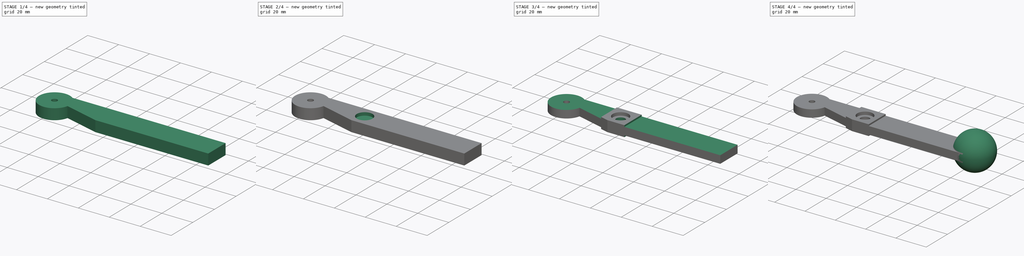
[diagram: build sequence overview — one tinted view per stage of 4, left to right]
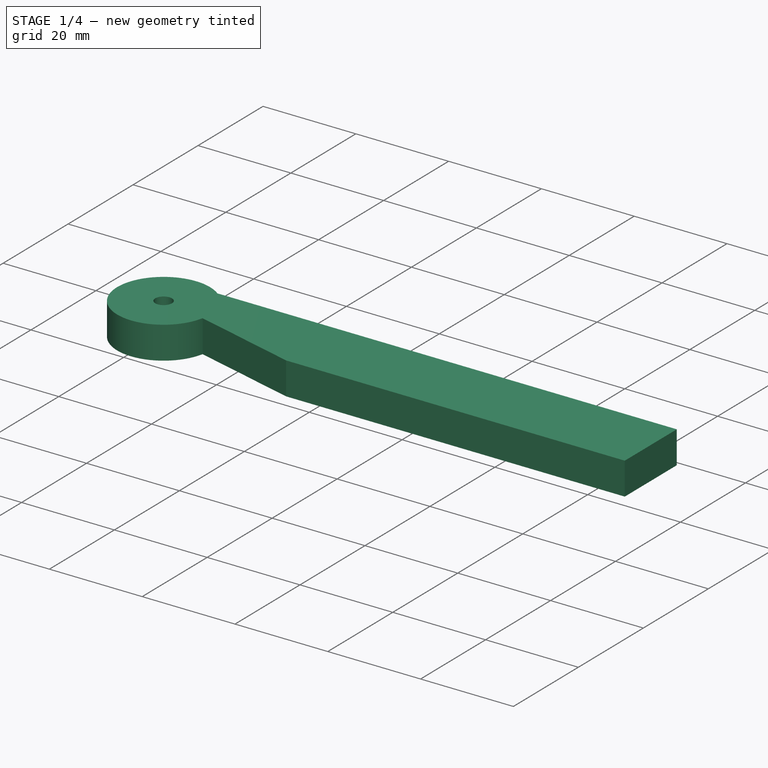
[diagram: stage 1 of 4 — iso view after this stage's code; geometry added in this stage tinted green]
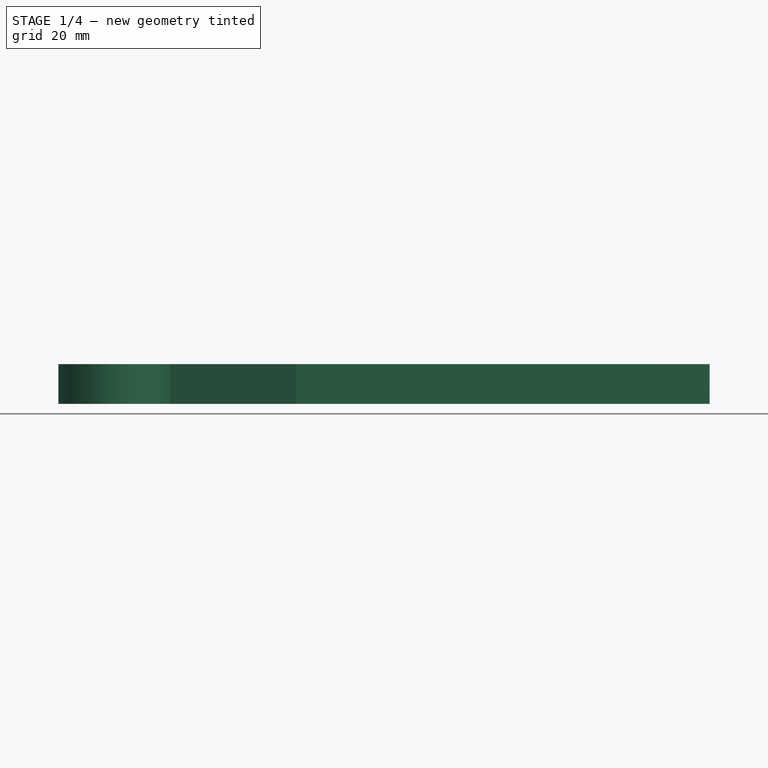
[diagram: stage 1 of 4 — front view after this stage's code; geometry added in this stage tinted green]
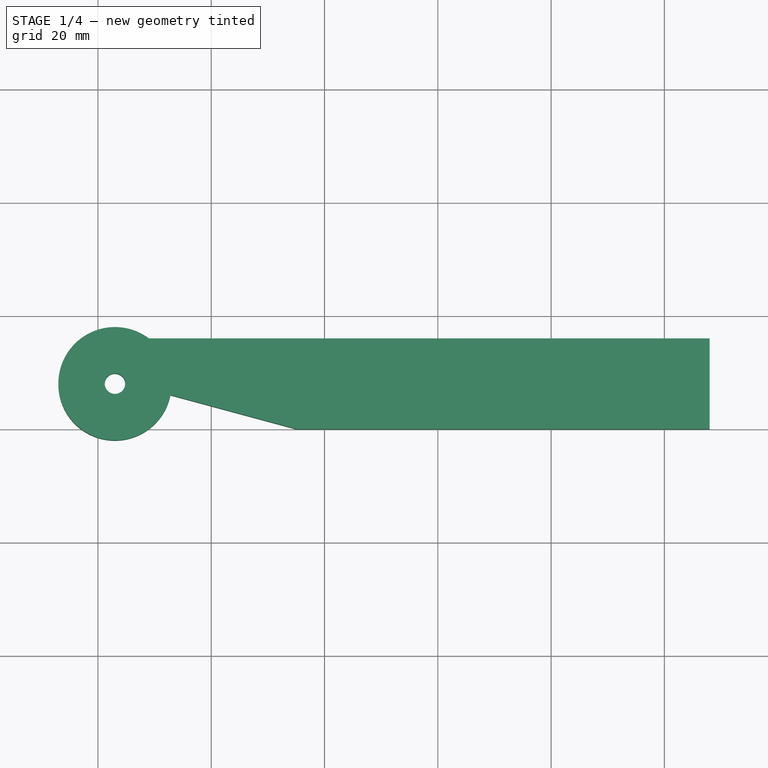
[diagram: stage 1 of 4 — top view after this stage's code; geometry added in this stage tinted green]
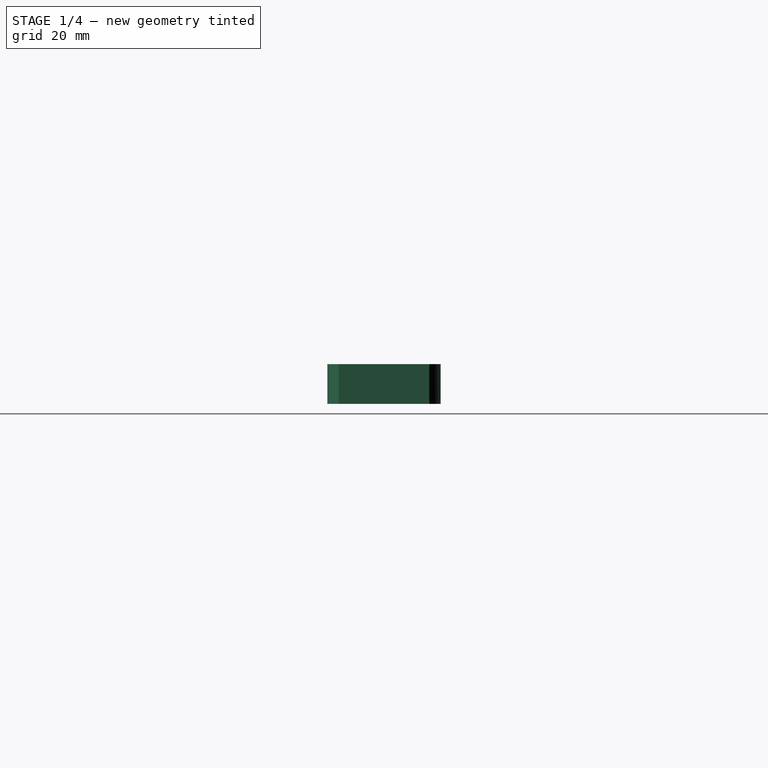
[diagram: stage 1 of 4 — right view after this stage's code; geometry added in this stage tinted green]
FCSTD DOCUMENT  (FreeCAD 0.21R33694 (Git))
Label: calfFeet
License: All rights reserved
LicenseURL: http://en.wikipedia.org/wiki/All_rights_reserved
objects: Sketcher::SketchObject×7, PartDesign::Pocket×6, PartDesign::Pad×1, Part::Sphere×1, PartDesign::Chamfer×1, PartDesign::Body×1
note: 25 computed .brp shape members not serialized (recipe doc carries the construction recipe); baked Part::Feature solids carry a one-line shape summary decoded from their .brp

FEATURE [Sketcher::SketchObject] Sketch
  FullyConstrained = true
  MapMode = 5
  Support = -> [XY_Plane]
  sketch-geometry (8):
    g0: LineSegment StartX=0 StartY=10 StartZ=0 EndX=0 EndY=16 EndZ=0
    g1: LineSegment StartX=108 StartY=16 StartZ=0 EndX=108 EndY=0 EndZ=0
    g2: LineSegment StartX=108 StartY=0 StartZ=0 EndX=35 EndY=0 EndZ=0
    g3: LineSegment StartX=0 StartY=16 StartZ=0 EndX=9 EndY=16 EndZ=0
    g4: LineSegment StartX=9 StartY=16 StartZ=0 EndX=108 EndY=16 EndZ=0
    g5: LineSegment StartX=0 StartY=10 StartZ=0 EndX=12.798 EndY=6 EndZ=0
    g6: LineSegment StartX=12.798 StartY=6 StartZ=0 EndX=35 EndY=-8e-16 EndZ=0
    g7: ArcOfCircle CenterX=3 CenterY=8 CenterZ=0 NormalX=0 NormalY=0 NormalZ=1 AngleXU=0 Radius=10 StartAngle=0.927295 EndAngle=6.08183
  constraints (24):
    c: PointOnObject(g0,g-2)
    c: Coincident(g3,g0)
    c: Coincident(g1,g4)
    c: PointOnObject(g1,g-1)
    c: Vertical(g1)
    c: Coincident(g2,g1)
    c: DistanceY(g-1,g0) = 16
    c: DistanceX(g3,g4) = 108
    c: DistanceY(g5,g0) = 6
    c: Coincident(g2,g6)
    c: Coincident(g0,g5)
    c: DistanceY(g2,g1) = 0
    c: DistanceX(g0,g0) = 0
    c: DistanceX(g0,g2) = 35
    c: DistanceY(g-1,g7) = 8
    c: DistanceX(g-1,g7) = 3
    c: Coincident(g3,g4)
    c: Horizontal(g3)
    c: Horizontal(g4)
    c: Coincident(g5,g6)
    c: DistanceY(g-1,g5) = 6
    c: Radius(g7) = 10
    c: Coincident(g7,g4)
    c: Coincident(g7,g6)
FEATURE [PartDesign::Pad] Pad
  Direction = (0,0,1)
  Length = 7
  Length2 = 10
  Profile = -> Sketch
  ReferenceAxis = -> Sketch [N_Axis]
  Type = 0
FEATURE [Sketcher::SketchObject] Sketch001
  FullyConstrained = true
  MapMode = 5
  Placement = pos=(0,0,7) rot=(0,0,1;0rad)
  Support = -> [Pad]
  sketch-geometry (1):
    g0: Circle CenterX=3 CenterY=8 CenterZ=0 NormalX=0 NormalY=0 NormalZ=1 AngleXU=0 Radius=1.8
  constraints (3):
    c: Radius(g0) = 1.8
    c: DistanceX(g-1,g0) = 3
    c: DistanceY(g-1,g0) = 8
FEATURE [PartDesign::Pocket] Pocket
  BaseFeature = -> Pad
  Direction = (0,0,-1)
  Length = 7
  Length2 = 5
  Profile = -> Sketch001
  ReferenceAxis = -> Sketch001 [N_Axis]
  Type = 0
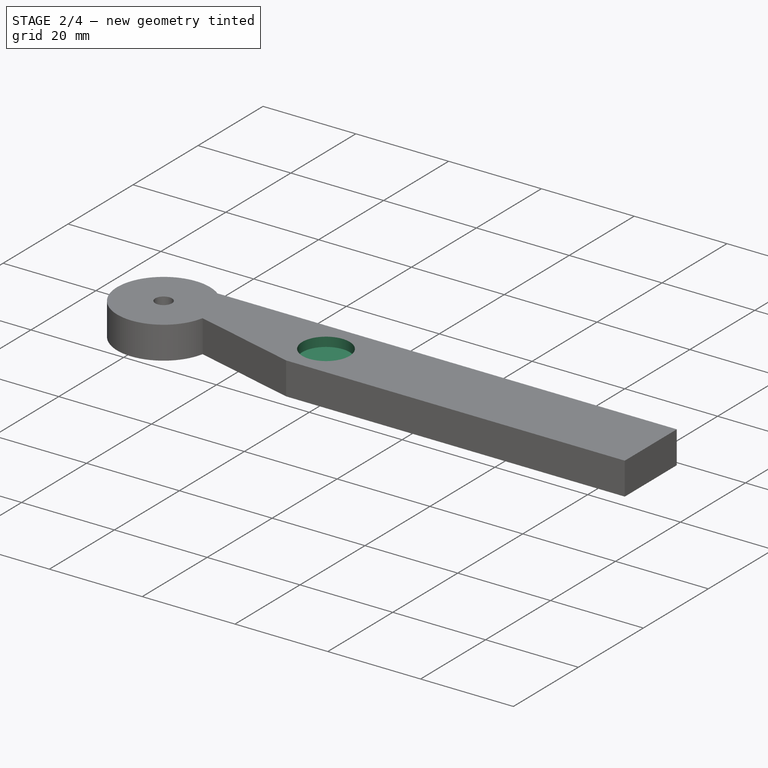
[diagram: stage 2 of 4 — iso view after this stage's code; geometry added in this stage tinted green]
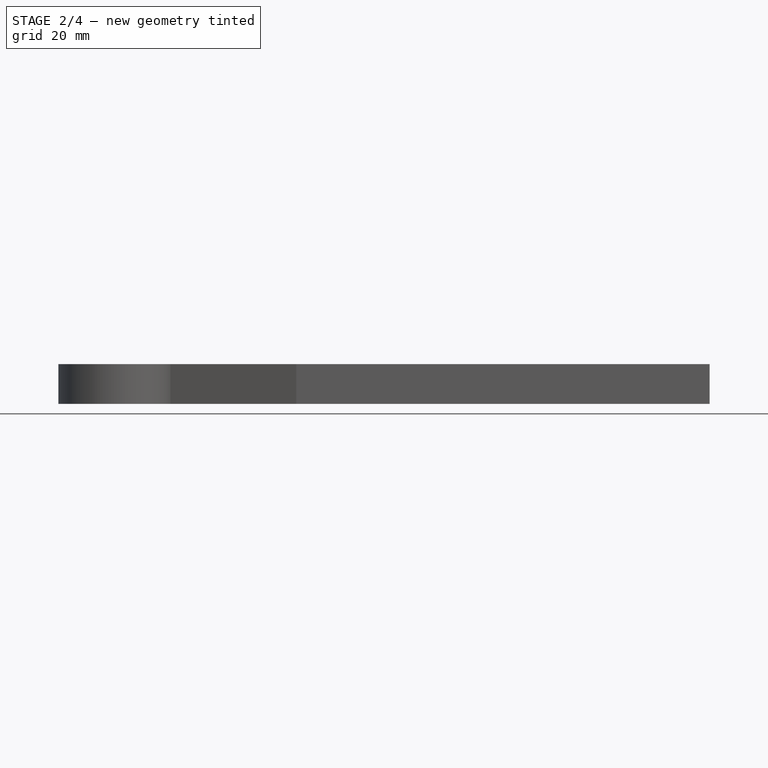
[diagram: stage 2 of 4 — front view after this stage's code; geometry added in this stage tinted green]
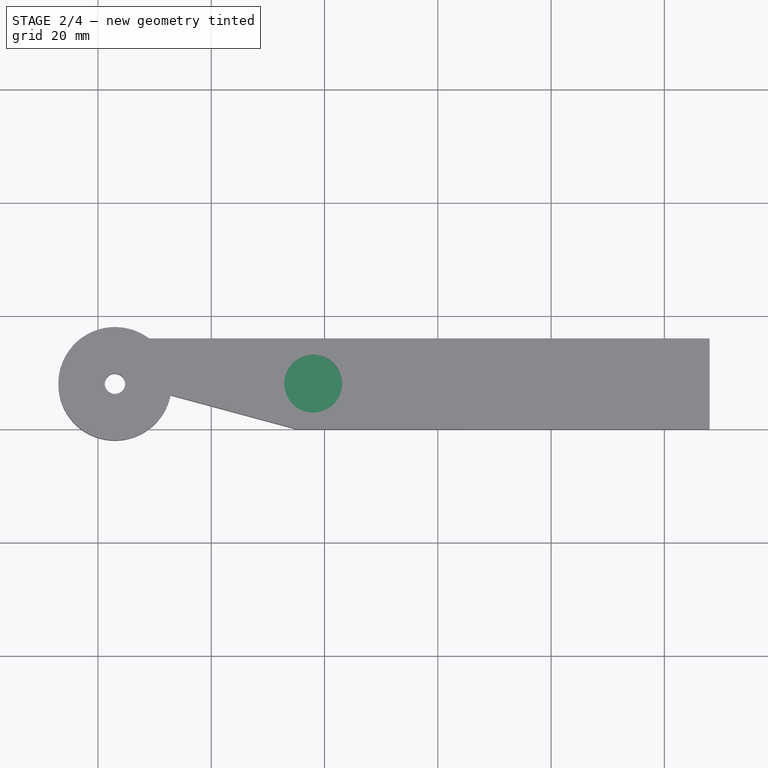
[diagram: stage 2 of 4 — top view after this stage's code; geometry added in this stage tinted green]
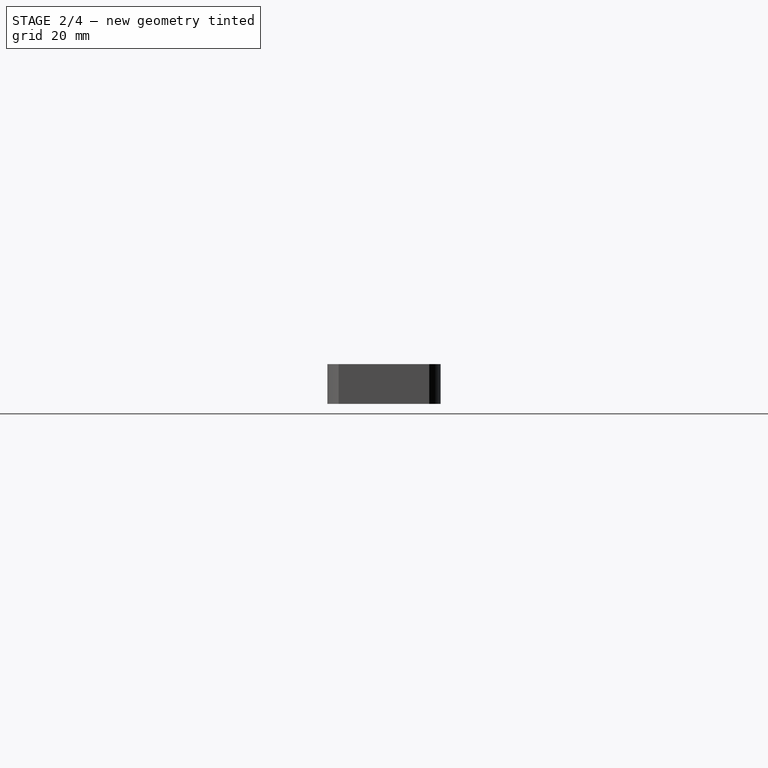
[diagram: stage 2 of 4 — right view after this stage's code; geometry added in this stage tinted green]
FEATURE [Sketcher::SketchObject] Sketch003
  FullyConstrained = true
  MapMode = 5
  Placement = pos=(0,0,0) rot=(1,0,0;3.14159rad)
  sketch-geometry (1):
    g0: Circle CenterX=38 CenterY=-8 CenterZ=0 NormalX=0 NormalY=0 NormalZ=1 AngleXU=0 Radius=5.2
  constraints (3):
    c: Radius(g0) = 5.2
    c: DistanceX(g-1,g0) = 38
    c: DistanceY(g0,g-1) = 8
FEATURE [PartDesign::Pocket] Pocket002
  BaseFeature = -> Pocket
  Direction = (0,0,1)
  Length = 2
  Length2 = 5
  Profile = -> Sketch003
  ReferenceAxis = -> Sketch003 [N_Axis]
  Type = 0
FEATURE [Sketcher::SketchObject] Sketch004
  FullyConstrained = true
  MapMode = 5
  Placement = pos=(0,0,7) rot=(0,0,1;0rad)
  Support = -> [Pocket002]
  sketch-geometry (1):
    g0: Circle CenterX=38 CenterY=8 CenterZ=0 NormalX=0 NormalY=0 NormalZ=1 AngleXU=0 Radius=5.1
  constraints (3):
    c: Radius(g0) = 5.1
    c: DistanceY(g-1,g0) = 8
    c: DistanceX(g-1,g0) = 38
FEATURE [PartDesign::Pocket] Pocket003
  BaseFeature = -> Pocket002
  Direction = (0,0,-1)
  Length = 2
  Length2 = 5
  Profile = -> Sketch004
  ReferenceAxis = -> Sketch004 [N_Axis]
  Type = 0
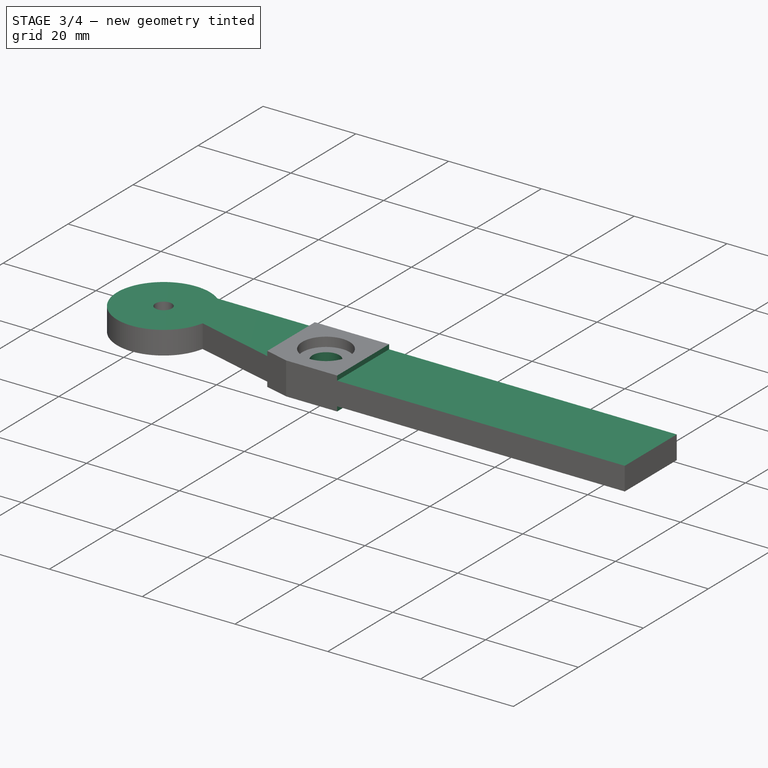
[diagram: stage 3 of 4 — iso view after this stage's code; geometry added in this stage tinted green]
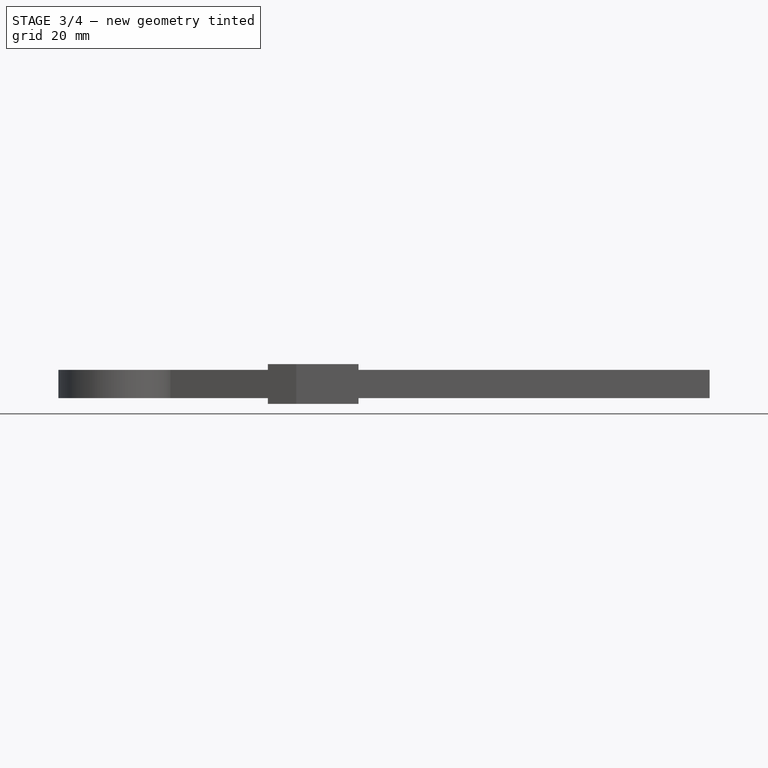
[diagram: stage 3 of 4 — front view after this stage's code; geometry added in this stage tinted green]
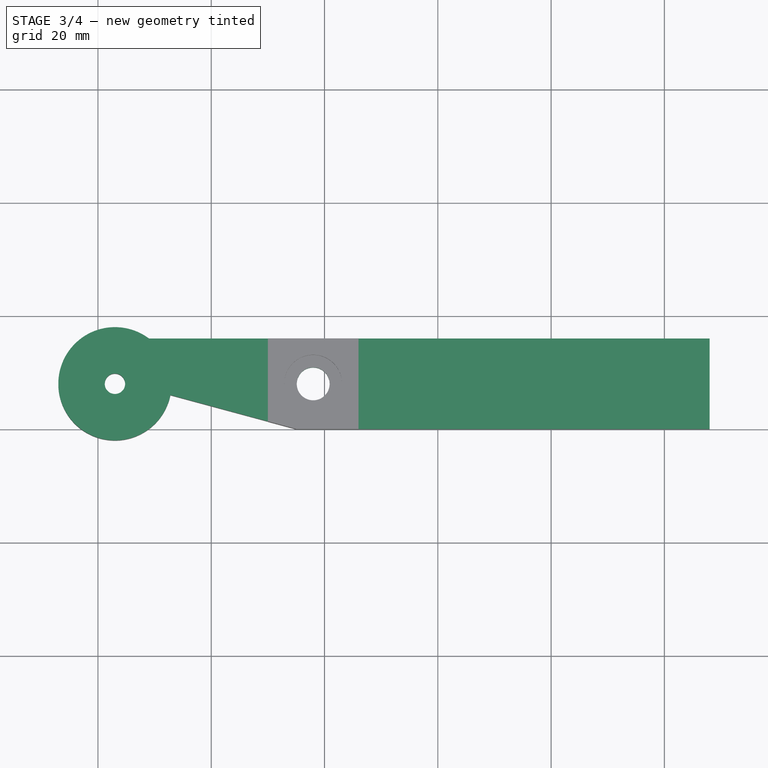
[diagram: stage 3 of 4 — top view after this stage's code; geometry added in this stage tinted green]
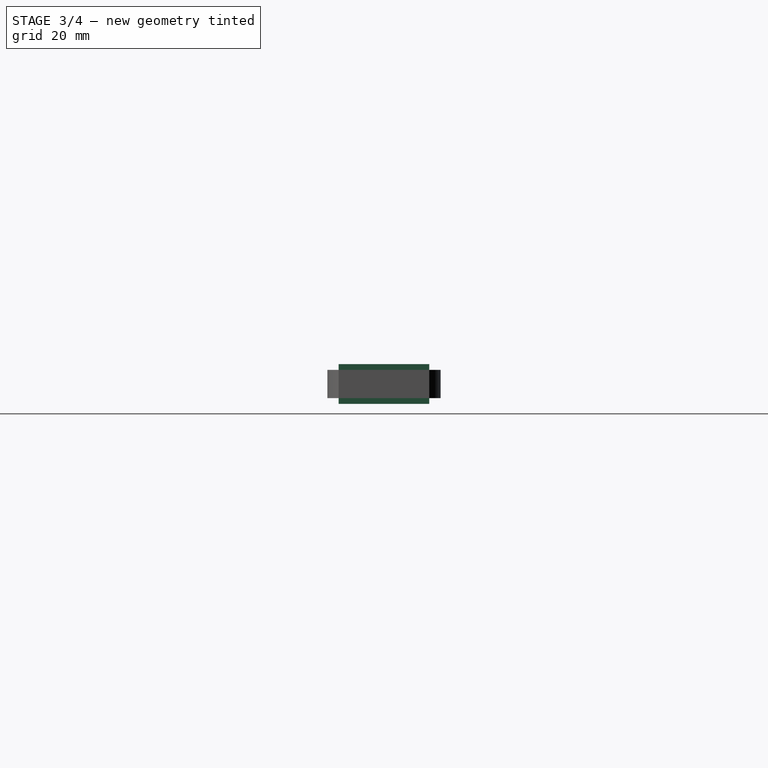
[diagram: stage 3 of 4 — right view after this stage's code; geometry added in this stage tinted green]
FEATURE [Sketcher::SketchObject] Sketch005
  FullyConstrained = true
  MapMode = 5
  Placement = pos=(0,0,5) rot=(0,0,1;0rad)
  Support = -> [Pocket003]
  sketch-geometry (1):
    g0: Circle CenterX=38 CenterY=8 CenterZ=0 NormalX=0 NormalY=0 NormalZ=1 AngleXU=0 Radius=2.9
  constraints (3):
    c: DistanceY(g-1,g0) = 8
    c: DistanceX(g-1,g0) = 38
    c: Radius(g0) = 2.9
FEATURE [PartDesign::Pocket] Pocket004
  BaseFeature = -> Pocket003
  Direction = (0,0,-1)
  Length = 3
  Length2 = 5
  Profile = -> Sketch005
  ReferenceAxis = -> Sketch005 [N_Axis]
  Type = 0
FEATURE [Sketcher::SketchObject] Sketch006
  FullyConstrained = true
  MapMode = 5
  Placement = pos=(0,0,0) rot=(1,0,0;3.14159rad)
  Support = -> [Pocket004]
  sketch-geometry (11):
    g0: LineSegment StartX=46 StartY=0 StartZ=0 EndX=108 EndY=0 EndZ=0
    g1: LineSegment StartX=108 StartY=0 StartZ=0 EndX=108 EndY=-25 EndZ=0
    g2: LineSegment StartX=108 StartY=-25 StartZ=0 EndX=46 EndY=-25 EndZ=0
    g3: LineSegment StartX=46 StartY=-25 StartZ=0 EndX=46 EndY=0 EndZ=0
    g4: LineSegment StartX=-10 StartY=0 StartZ=0 EndX=30 EndY=0 EndZ=0
    g5: LineSegment StartX=30 StartY=0 StartZ=0 EndX=30 EndY=-25 EndZ=0
    g6: LineSegment StartX=30 StartY=-25 StartZ=0 EndX=-10 EndY=-25 EndZ=0
    g7: LineSegment StartX=-10 StartY=-25 StartZ=0 EndX=-10 EndY=0 EndZ=0
    g8: LineSegment StartX=-10 StartY=0 StartZ=0 EndX=-10 EndY=5 EndZ=0
    g9: LineSegment StartX=-10 StartY=5 StartZ=0 EndX=30 EndY=5 EndZ=0
    g10: LineSegment StartX=30 StartY=5 StartZ=0 EndX=30 EndY=0 EndZ=0
  constraints (32):
    c: Coincident(g0,g1)
    c: Coincident(g1,g2)
    c: Coincident(g2,g3)
    c: Coincident(g3,g0)
    c: Horizontal(g0)
    c: Horizontal(g2)
    c: Vertical(g1)
    c: Vertical(g3)
    c: Coincident(g4,g5)
    c: Coincident(g5,g6)
    c: Coincident(g6,g7)
    c: Coincident(g7,g4)
    c: Horizontal(g4)
    c: Horizontal(g6)
    c: Vertical(g5)
    c: Vertical(g7)
    c: DistanceY(g0,g4) = 0
    c: DistanceY(g2,g5) = 0
    c: DistanceY(g-1,g4) = 0
    c: DistanceY(g6,g-1) = 25
    c: DistanceX(g4,g-1) = 10
    c: DistanceX(g-1,g4) = 30
    c: DistanceX(g-1,g0) = 46
    c: DistanceX(g-1,g1) = 108
    c: Coincident(g8,g7)
    c: Vertical(g8)
    c: Coincident(g9,g8)
    c: Horizontal(g9)
    c: Coincident(g10,g9)
    c: Coincident(g10,g5)
    c: Vertical(g10)
    c: DistanceY(g7,g8) = 5
FEATURE [PartDesign::Pocket] Pocket005
  BaseFeature = -> Pocket004
  Direction = (0,0,1)
  Length = 1
  Length2 = 5
  Profile = -> Sketch006
  ReferenceAxis = -> Sketch006 [N_Axis]
  Type = 0
FEATURE [Sketcher::SketchObject] Sketch007
  FullyConstrained = true
  MapMode = 5
  Placement = pos=(0,0,7) rot=(0,0,1;0rad)
  Support = -> [Pocket005]
  sketch-geometry (11):
    g0: LineSegment StartX=-10 StartY=25 StartZ=0 EndX=30 EndY=25 EndZ=0
    g1: LineSegment StartX=30 StartY=25 StartZ=0 EndX=30 EndY=0 EndZ=0
    g2: LineSegment StartX=30 StartY=0 StartZ=0 EndX=-10 EndY=0 EndZ=0
    g3: LineSegment StartX=-10 StartY=0 StartZ=0 EndX=-10 EndY=25 EndZ=0
    g4: LineSegment StartX=46 StartY=25 StartZ=0 EndX=108 EndY=25 EndZ=0
    g5: LineSegment StartX=108 StartY=25 StartZ=0 EndX=108 EndY=0 EndZ=0
    g6: LineSegment StartX=108 StartY=0 StartZ=0 EndX=46 EndY=0 EndZ=0
    g7: LineSegment StartX=46 StartY=0 StartZ=0 EndX=46 EndY=25 EndZ=0
    g8: LineSegment StartX=-10 StartY=0 StartZ=0 EndX=-10 EndY=-5 EndZ=0
    g9: LineSegment StartX=-10 StartY=-5 StartZ=0 EndX=30 EndY=-5 EndZ=0
    g10: LineSegment StartX=30 StartY=-5 StartZ=0 EndX=30 EndY=0 EndZ=0
  constraints (32):
    c: Coincident(g0,g1)
    c: Coincident(g1,g2)
    c: Coincident(g2,g3)
    c: Coincident(g3,g0)
    c: Horizontal(g0)
    c: Horizontal(g2)
    c: Vertical(g1)
    c: Vertical(g3)
    c: Coincident(g4,g5)
    c: Coincident(g5,g6)
    c: Coincident(g6,g7)
    c: Coincident(g7,g4)
    c: Horizontal(g4)
    c: Horizontal(g6)
    c: Vertical(g5)
    c: Vertical(g7)
    c: DistanceY(g6,g1) = 0
    c: DistanceY(g6,g-1) = 0
    c: DistanceX(g0,g-1) = 10
    c: DistanceY(g4,g0) = 0
    c: DistanceX(g-1,g1) = 30
    c: DistanceX(g-1,g6) = 46
    c: DistanceX(g-1,g5) = 108
    c: DistanceY(g-1,g0) = 25
    c: Coincident(g8,g2)
    c: Vertical(g8)
    c: Coincident(g9,g8)
    c: Horizontal(g9)
    c: Coincident(g10,g9)
    c: Coincident(g10,g1)
    c: Vertical(g10)
    c: DistanceY(g8,g2) = 5
FEATURE [PartDesign::Pocket] Pocket006
  BaseFeature = -> Pocket005
  Direction = (0,0,-1)
  Length = 1
  Length2 = 5
  Profile = -> Sketch007
  ReferenceAxis = -> Sketch007 [N_Axis]
  Type = 0
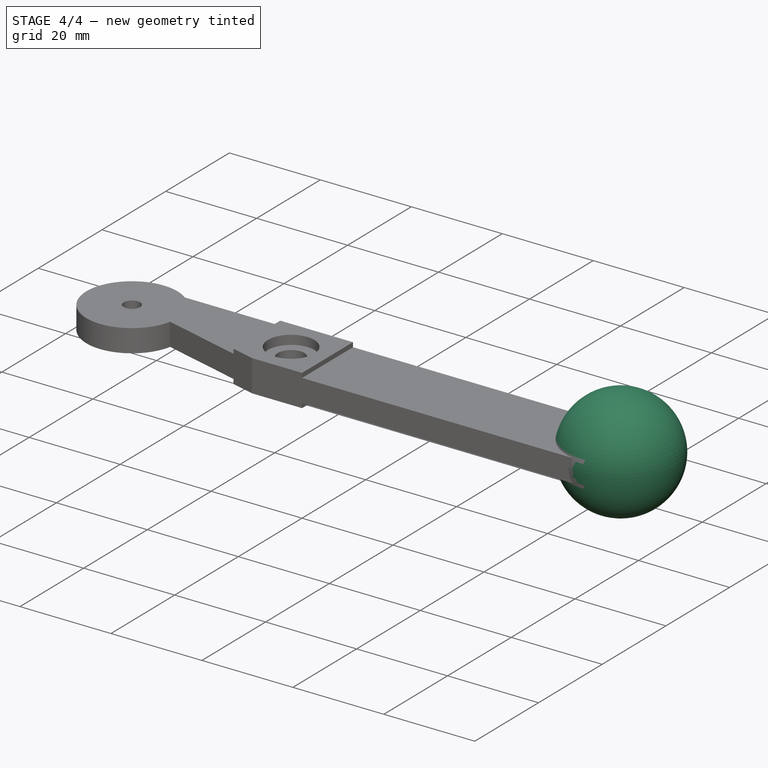
[diagram: stage 4 of 4 — iso view after this stage's code; geometry added in this stage tinted green]
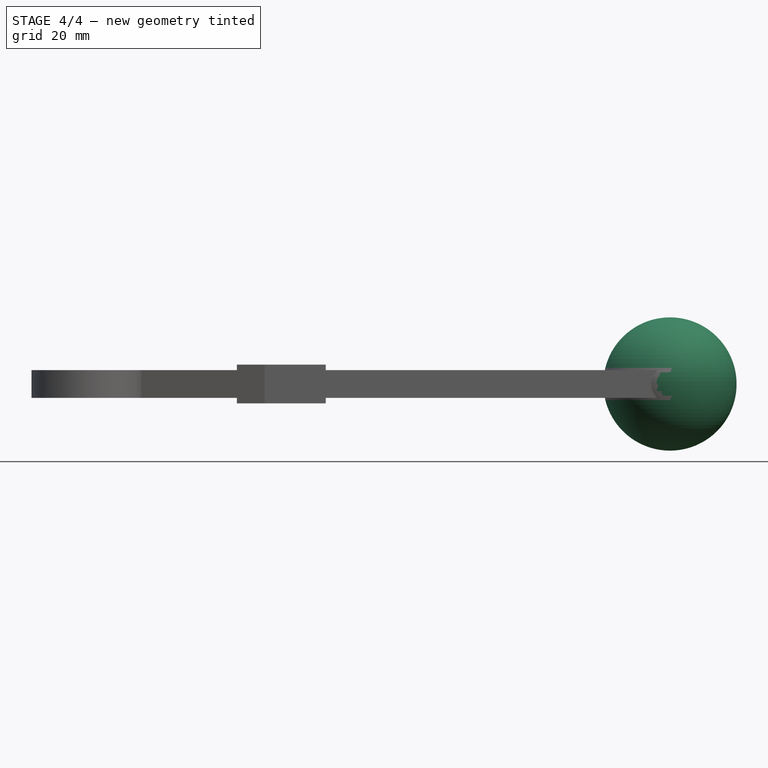
[diagram: stage 4 of 4 — front view after this stage's code; geometry added in this stage tinted green]
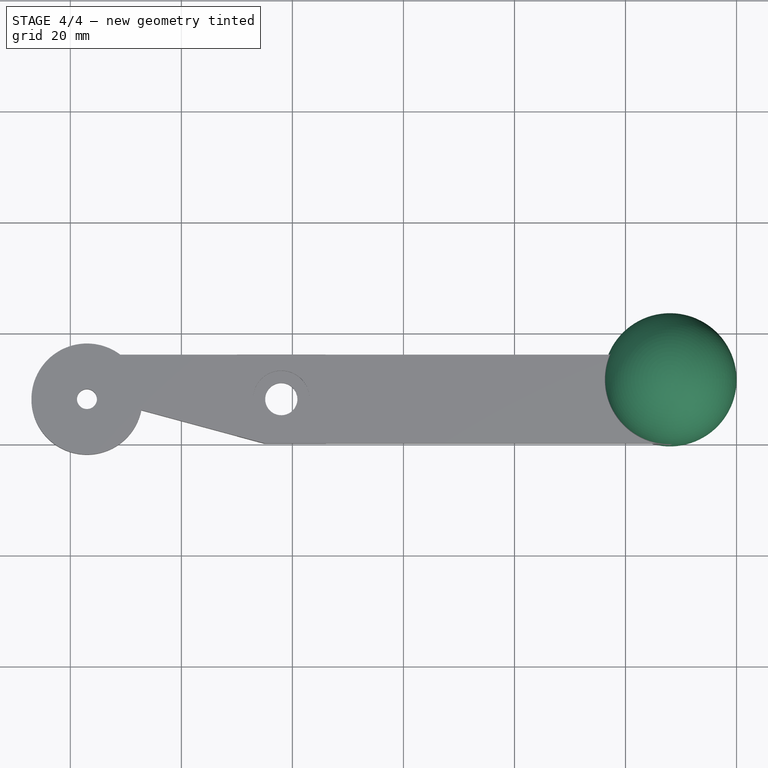
[diagram: stage 4 of 4 — top view after this stage's code; geometry added in this stage tinted green]
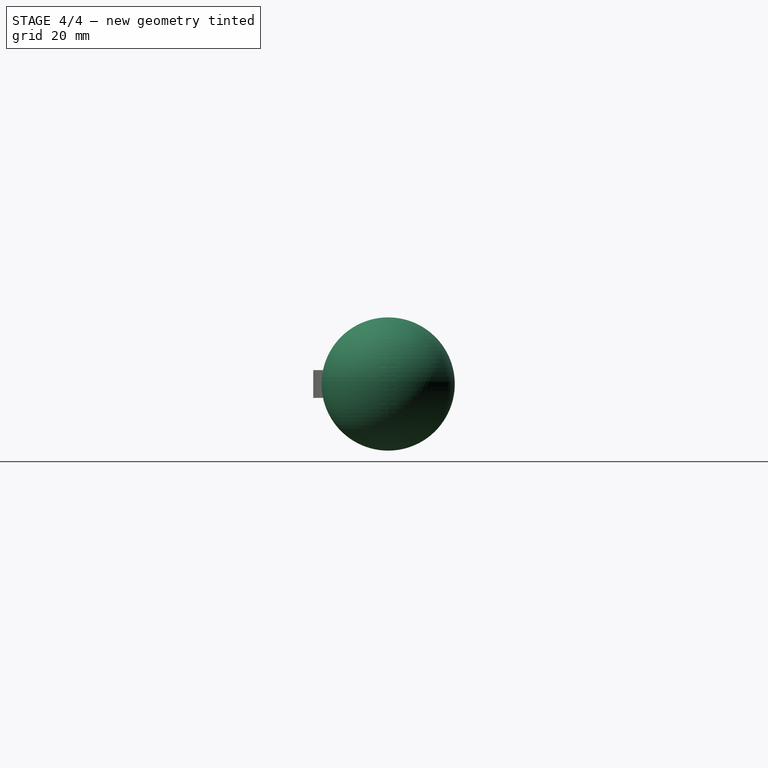
[diagram: stage 4 of 4 — right view after this stage's code; geometry added in this stage tinted green]
FEATURE [Part::Sphere] Sphere
  Angle1 = -90
  Angle2 = 90
  Angle3 = 360
  AttacherType = Attacher::AttachEngine3D
  Placement = pos=(108,11.5,3.5) rot=(0,0,1;0rad)
  Radius = 12
FEATURE [PartDesign::Chamfer] Chamfer
  Angle = 45
  Base = -> Pocket006 [Edge28]
  BaseFeature = -> Pocket006
  ChamferType = 0
  FlipDirection = false
  Size = 0.2
  Size2 = 1
  SupportTransform = false
  UseAllEdges = false
FEATURE [PartDesign::Body] Body
  Group = -> [Sketch,Pad,Sketch001,Pocket,Sketch003,Pocket002,Sketch004,Pocket003,Sketch005,Pocket004,Sketch006,Pocket005,Sketch007,Pocket006,Chamfer]
  Origin = -> Origin
  Tip = -> Chamfer
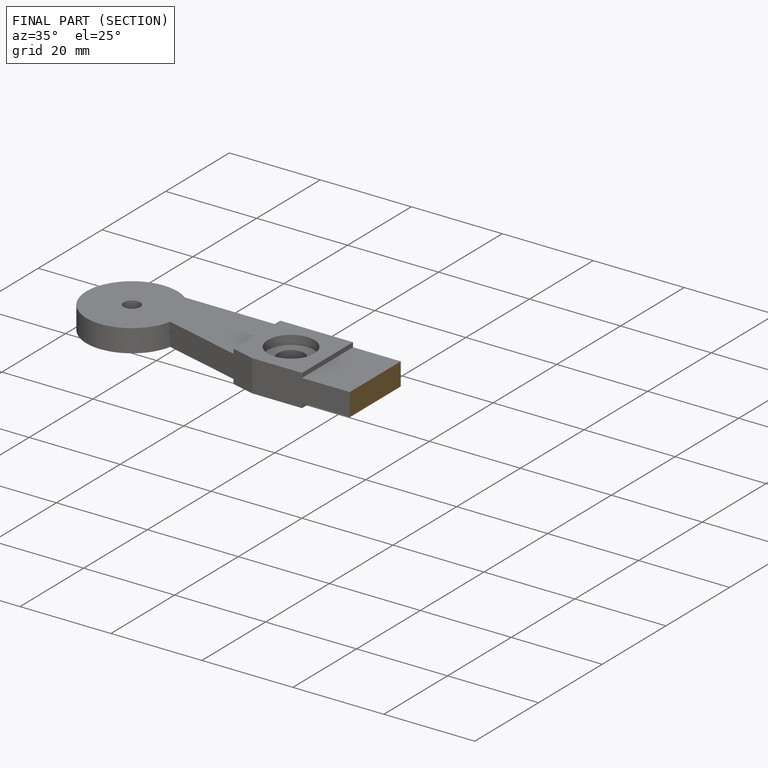
[diagram: finished part — half-section view (interior)]
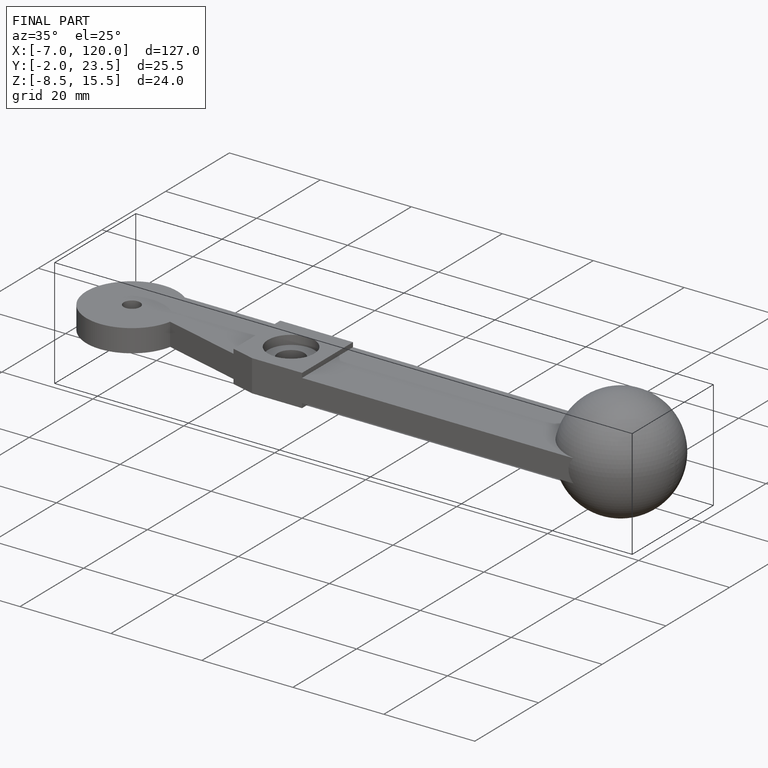
[diagram: finished part — iso view with bounding-box wireframe]
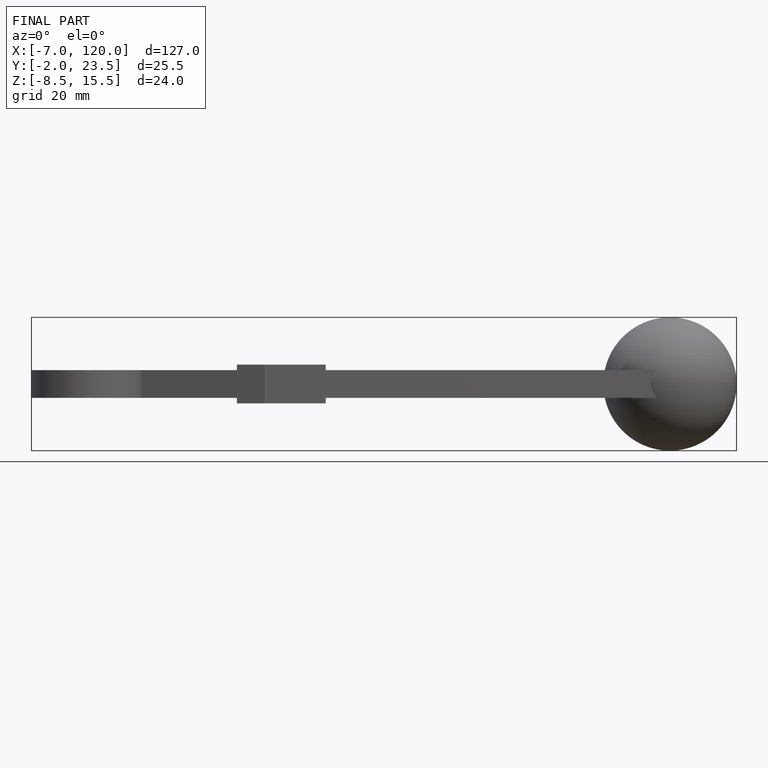
[diagram: finished part — front view with bounding-box wireframe]
